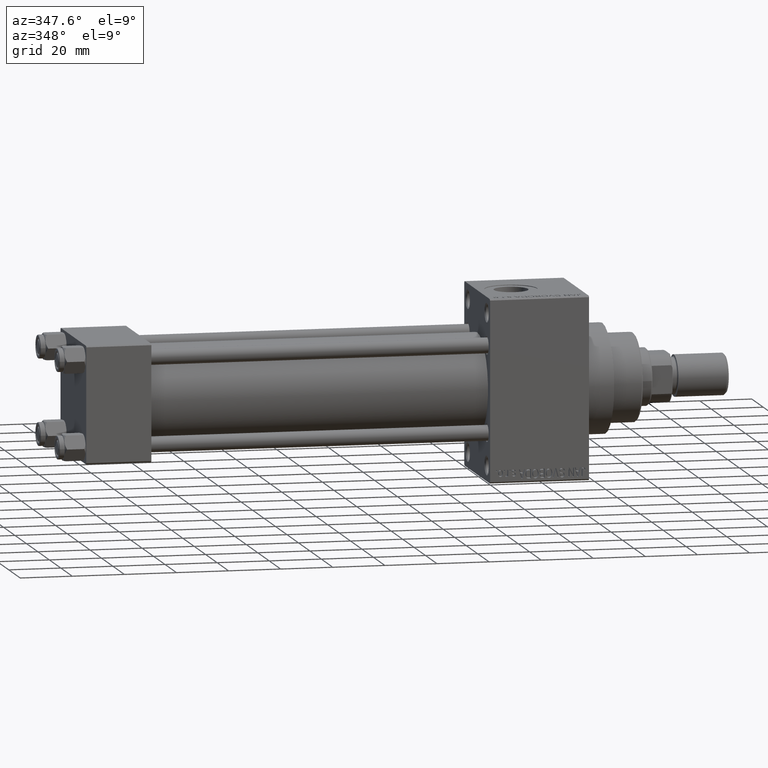
[diagram: clean part render]
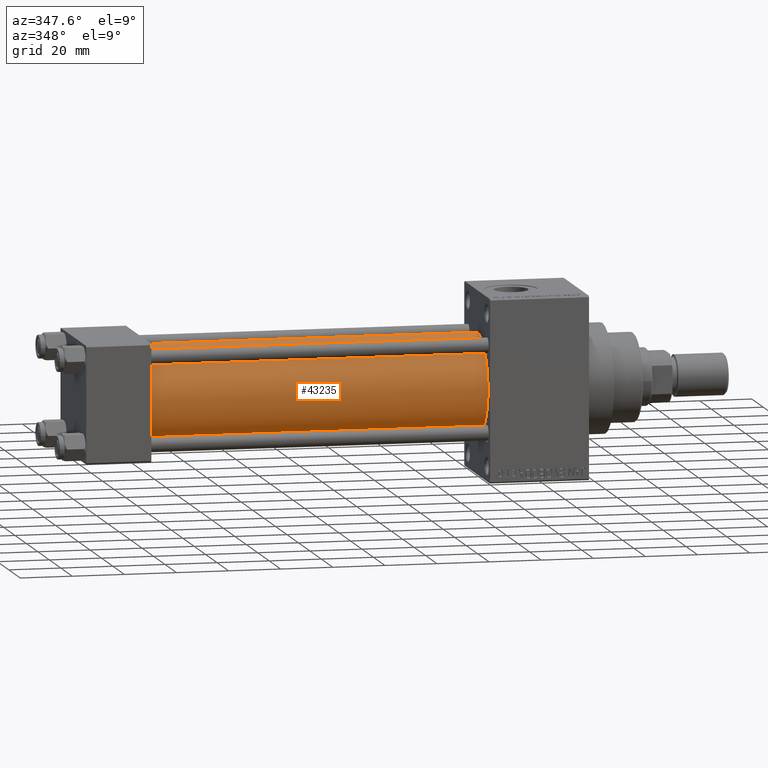
[diagram: same view with one face highlighted and labeled with its STEP entity id]
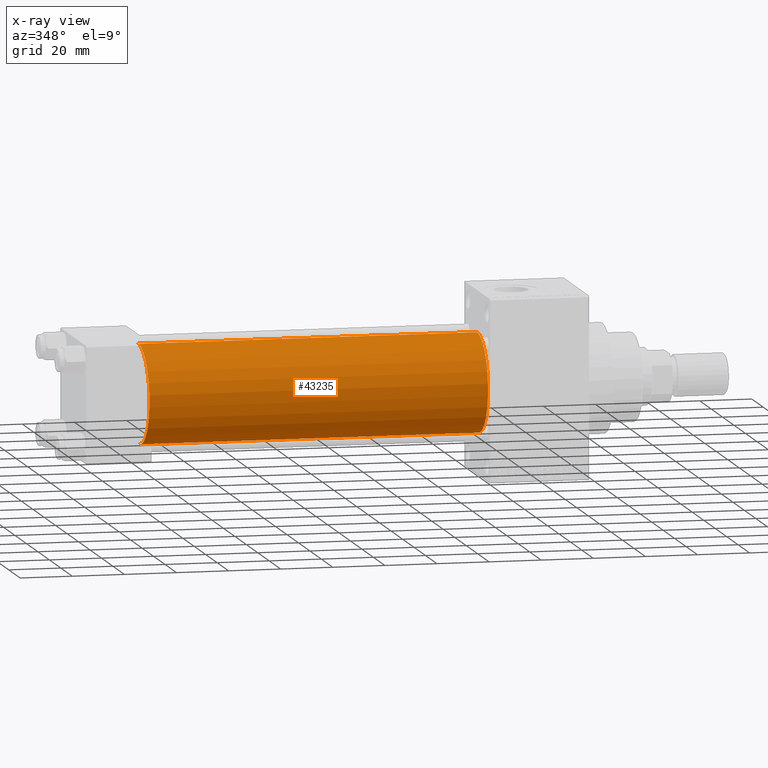
[diagram: x-ray of the same camera — body ghosted, the highlighted face saturated]
A machine part, auxiliary view. The second image highlights one B-rep face of the part: STEP entity #43235.
The next image is the same camera in x-ray: the body ghosted, the highlighted face saturated — about 0% of this face is hidden behind the body in this view.
In plain terms, the highlighted cylindrical surface (partial cylindrical patch) has radius 19 mm, axis along (-1, -0, -0).
Its self-contained STEP definition (entity closure, byte-faithful):
#1647 = CARTESIAN_POINT ( 'NONE',  ( 155.0000000000000000, -2.602085213965210642E-15, 0.000000000000000000 ) ) ;
#3380 = CARTESIAN_POINT ( 'NONE',  ( 24.99999999999999289, -2.602085213965210642E-15, 19.00000000000000000 ) ) ;
#5909 = LINE ( 'NONE', #36383, #19186 ) ;
#7815 = EDGE_CURVE ( 'NONE', #46552, #38973, #16540, .T. ) ;
#8363 = CIRCLE ( 'NONE', #9961, 19.00000000000000000 ) ;
#8660 = AXIS2_PLACEMENT_3D ( 'NONE', #13809, #33390, #18014 ) ;
#9327 = CYLINDRICAL_SURFACE ( 'NONE', #18105, 19.00000000000000000 ) ;
#9961 = AXIS2_PLACEMENT_3D ( 'NONE', #25450, #33112, #29635 ) ;
#11178 = ORIENTED_EDGE ( 'NONE', *, *, #14375, .T. ) ;
#12510 = DIRECTION ( 'NONE',  ( -1.000000000000000000, -0.000000000000000000, -0.000000000000000000 ) ) ;
#13809 = CARTESIAN_POINT ( 'NONE',  ( 24.99999999999999289, -2.602085213965210642E-15, 0.000000000000000000 ) ) ;
#14375 = EDGE_CURVE ( 'NONE', #44774, #46552, #5909, .T. ) ;
#16540 = CIRCLE ( 'NONE', #8660, 19.00000000000000000 ) ;
#18014 = DIRECTION ( 'NONE',  ( 0.000000000000000000, 0.000000000000000000, 1.000000000000000000 ) ) ;
#18105 = AXIS2_PLACEMENT_3D ( 'NONE', #1647, #19987, #46770 ) ;
#19186 = VECTOR ( 'NONE', #32906, 1000.000000000000000 ) ;
#19987 = DIRECTION ( 'NONE',  ( -1.000000000000000000, -0.000000000000000000, -0.000000000000000000 ) ) ;
#21849 = VECTOR ( 'NONE', #12510, 1000.000000000000000 ) ;
#23849 = EDGE_CURVE ( 'NONE', #32725, #38973, #27167, .T. ) ;
#25450 = CARTESIAN_POINT ( 'NONE',  ( 155.0000000000000000, -2.602085213965210642E-15, 0.000000000000000000 ) ) ;
#25521 = CARTESIAN_POINT ( 'NONE',  ( 155.0000000000000000, -2.602085213965210642E-15, 19.00000000000000000 ) ) ;
#27167 = LINE ( 'NONE', #38313, #21849 ) ;
#28669 = EDGE_CURVE ( 'NONE', #44774, #32725, #8363, .T. ) ;
#29635 = DIRECTION ( 'NONE',  ( 0.000000000000000000, 0.000000000000000000, -1.000000000000000000 ) ) ;
#32623 = ORIENTED_EDGE ( 'NONE', *, *, #23849, .F. ) ;
#32725 = VERTEX_POINT ( 'NONE', #36640 ) ;
#32906 = DIRECTION ( 'NONE',  ( -1.000000000000000000, -0.000000000000000000, -0.000000000000000000 ) ) ;
#33112 = DIRECTION ( 'NONE',  ( 1.000000000000000000, 0.000000000000000000, 0.000000000000000000 ) ) ;
#33390 = DIRECTION ( 'NONE',  ( 1.000000000000000000, -0.000000000000000000, 0.000000000000000000 ) ) ;
#34334 = EDGE_LOOP ( 'NONE', ( #32623, #46267, #11178, #46769 ) ) ;
#36383 = CARTESIAN_POINT ( 'NONE',  ( 155.0000000000000000, -2.602085213965210642E-15, 19.00000000000000000 ) ) ;
#36640 = CARTESIAN_POINT ( 'NONE',  ( 155.0000000000000000, -2.752562955852396712E-16, -19.00000000000000000 ) ) ;
#38313 = CARTESIAN_POINT ( 'NONE',  ( 155.0000000000000000, -2.752562955852396712E-16, -19.00000000000000000 ) ) ;
#38973 = VERTEX_POINT ( 'NONE', #41431 ) ;
#41431 = CARTESIAN_POINT ( 'NONE',  ( 24.99999999999999289, -2.752562955852396712E-16, -19.00000000000000000 ) ) ;
#43235 = ADVANCED_FACE ( 'NONE', ( #46516 ), #9327, .T. ) ;
#44774 = VERTEX_POINT ( 'NONE', #25521 ) ;
#46267 = ORIENTED_EDGE ( 'NONE', *, *, #28669, .F. ) ;
#46516 = FACE_OUTER_BOUND ( 'NONE', #34334, .T. ) ;
#46552 = VERTEX_POINT ( 'NONE', #3380 ) ;
#46769 = ORIENTED_EDGE ( 'NONE', *, *, #7815, .T. ) ;
#46770 = DIRECTION ( 'NONE',  ( 0.000000000000000000, 0.000000000000000000, 1.000000000000000000 ) ) ;